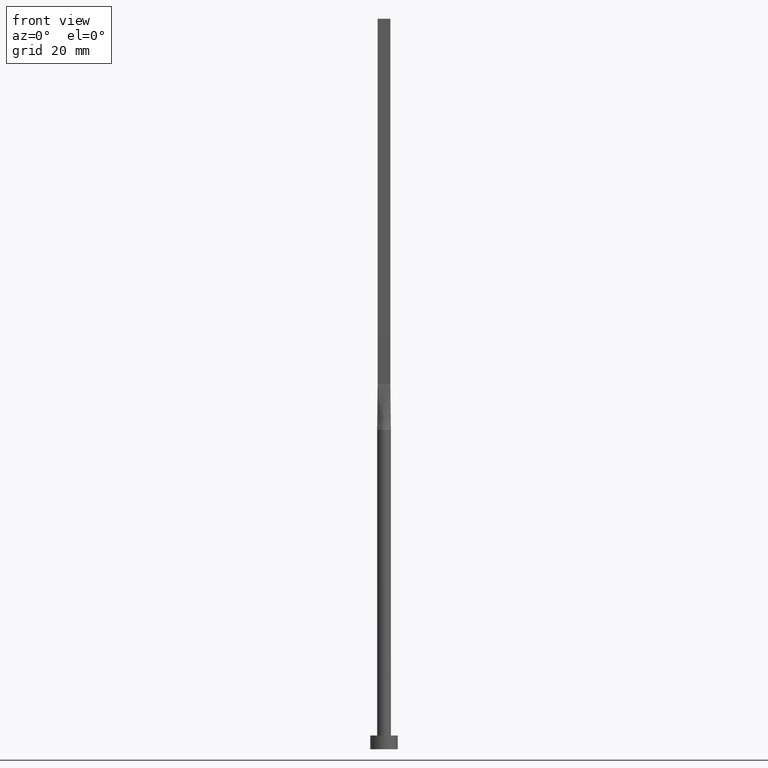
[diagram: clean part render]
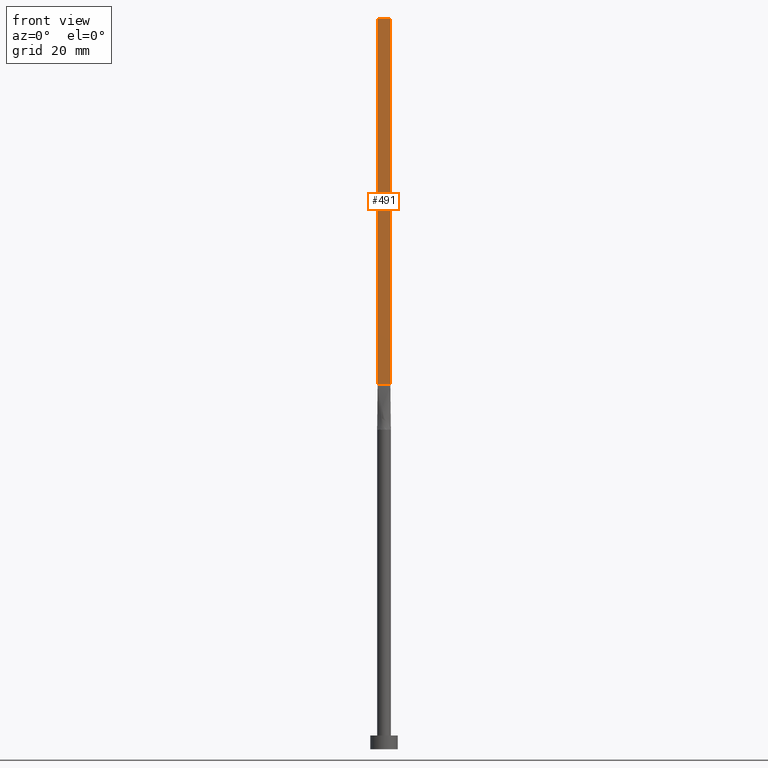
[diagram: same view with one face highlighted and labeled with its STEP entity id]
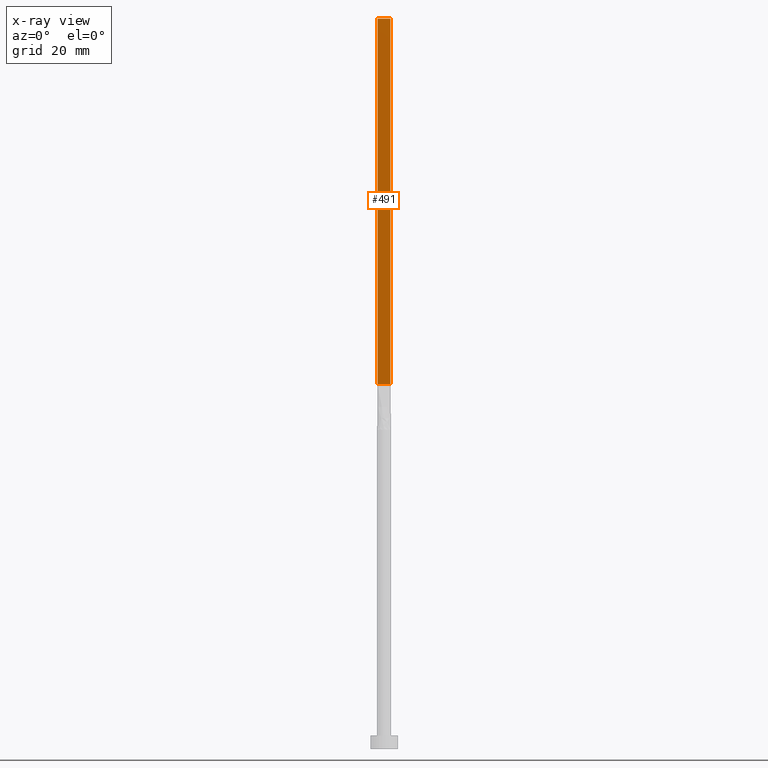
[diagram: x-ray of the same camera — body ghosted, the highlighted face saturated]
A machine part, front view. The second image highlights one B-rep face of the part: STEP entity #491.
The next image is the same camera in x-ray: the body ghosted, the highlighted face saturated — about 0% of this face is hidden behind the body in this view.
In plain terms, the highlighted planar face has unit normal (0, 1, -0).
Its self-contained STEP definition (entity closure, byte-faithful):
#6 = CARTESIAN_POINT ( 'NONE',  ( -1.399999999999999911, -0.2999999999999996003, 160.0000000000000000 ) ) ;
#13 = LINE ( 'NONE', #6, #500 ) ;
#14 = CARTESIAN_POINT ( 'NONE',  ( -1.399999999999999911, -0.2999999999999996003, 160.0000000000000000 ) ) ;
#27 = CARTESIAN_POINT ( 'NONE',  ( -1.399999999999999911, -0.2999999999999996003, 160.0000000000000000 ) ) ;
#39 = ORIENTED_EDGE ( 'NONE', *, *, #220, .F. ) ;
#43 = EDGE_LOOP ( 'NONE', ( #218, #39, #103, #383 ) ) ;
#61 = VERTEX_POINT ( 'NONE', #211 ) ;
#68 = LINE ( 'NONE', #335, #105 ) ;
#70 = FACE_OUTER_BOUND ( 'NONE', #43, .T. ) ;
#86 = VERTEX_POINT ( 'NONE', #259 ) ;
#93 = DIRECTION ( 'NONE',  ( -0.000000000000000000, -0.000000000000000000, -1.000000000000000000 ) ) ;
#103 = ORIENTED_EDGE ( 'NONE', *, *, #556, .F. ) ;
#105 = VECTOR ( 'NONE', #515, 1000.000000000000000 ) ;
#126 = AXIS2_PLACEMENT_3D ( 'NONE', #27, #377, #467 ) ;
#211 = CARTESIAN_POINT ( 'NONE',  ( -1.399999999999999911, -0.2999999999999996003, 160.0000000000000000 ) ) ;
#218 = ORIENTED_EDGE ( 'NONE', *, *, #329, .T. ) ;
#220 = EDGE_CURVE ( 'NONE', #438, #86, #68, .T. ) ;
#225 = VECTOR ( 'NONE', #332, 1000.000000000000000 ) ;
#248 = VERTEX_POINT ( 'NONE', #413 ) ;
#259 = CARTESIAN_POINT ( 'NONE',  ( 1.399999999999999911, -0.2999999999999997669, 80.00000000000000000 ) ) ;
#285 = EDGE_CURVE ( 'NONE', #61, #248, #13, .T. ) ;
#290 = PLANE ( 'NONE',  #126 ) ;
#329 = EDGE_CURVE ( 'NONE', #248, #86, #531, .T. ) ;
#332 = DIRECTION ( 'NONE',  ( 1.000000000000000000, -5.808225924029488744E-17, 0.000000000000000000 ) ) ;
#335 = CARTESIAN_POINT ( 'NONE',  ( 1.399999999999999911, -0.2999999999999997669, 160.0000000000000000 ) ) ;
#359 = CARTESIAN_POINT ( 'NONE',  ( 1.399999999999999911, -0.2999999999999997669, 160.0000000000000000 ) ) ;
#366 = DIRECTION ( 'NONE',  ( 1.000000000000000000, -5.808225924029488744E-17, 0.000000000000000000 ) ) ;
#377 = DIRECTION ( 'NONE',  ( 5.808225924029488744E-17, 1.000000000000000000, -0.000000000000000000 ) ) ;
#383 = ORIENTED_EDGE ( 'NONE', *, *, #285, .T. ) ;
#413 = CARTESIAN_POINT ( 'NONE',  ( -1.399999999999999911, -0.2999999999999996003, 80.00000000000000000 ) ) ;
#438 = VERTEX_POINT ( 'NONE', #359 ) ;
#460 = LINE ( 'NONE', #14, #225 ) ;
#467 = DIRECTION ( 'NONE',  ( -1.000000000000000000, 5.808225924029488744E-17, 0.000000000000000000 ) ) ;
#491 = ADVANCED_FACE ( 'NONE', ( #70 ), #290, .F. ) ;
#500 = VECTOR ( 'NONE', #93, 1000.000000000000000 ) ;
#515 = DIRECTION ( 'NONE',  ( -0.000000000000000000, -0.000000000000000000, -1.000000000000000000 ) ) ;
#527 = VECTOR ( 'NONE', #366, 1000.000000000000000 ) ;
#531 = LINE ( 'NONE', #545, #527 ) ;
#545 = CARTESIAN_POINT ( 'NONE',  ( -1.399999999999999911, -0.2999999999999996003, 80.00000000000000000 ) ) ;
#556 = EDGE_CURVE ( 'NONE', #61, #438, #460, .T. ) ;